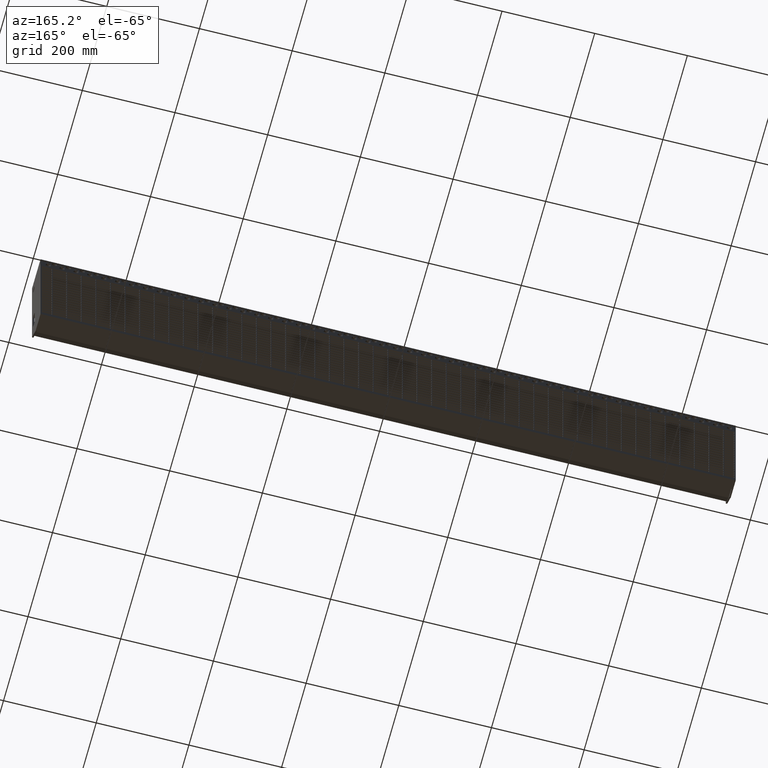
[diagram: clean part render]
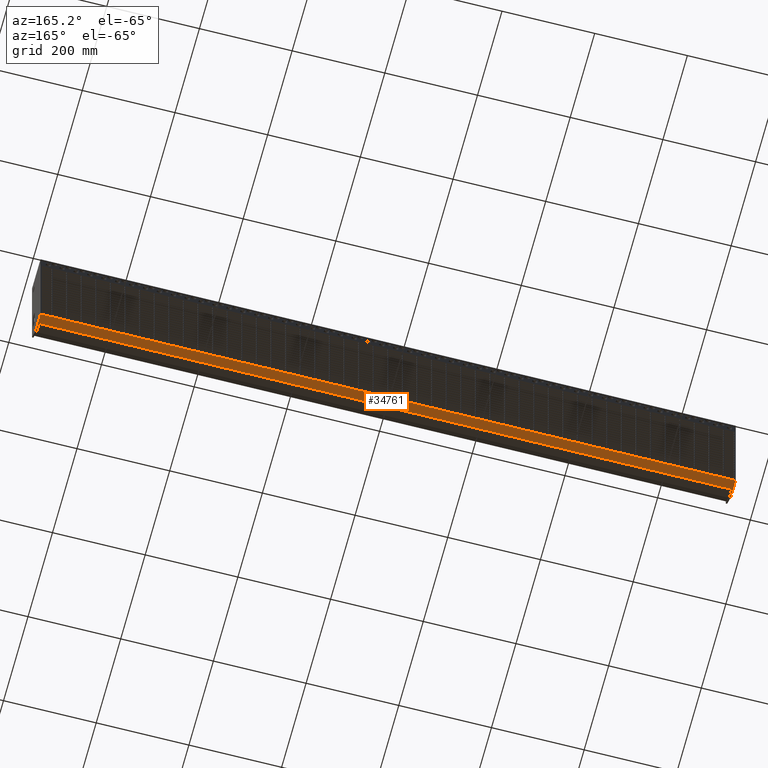
[diagram: same view with one face highlighted and labeled with its STEP entity id]
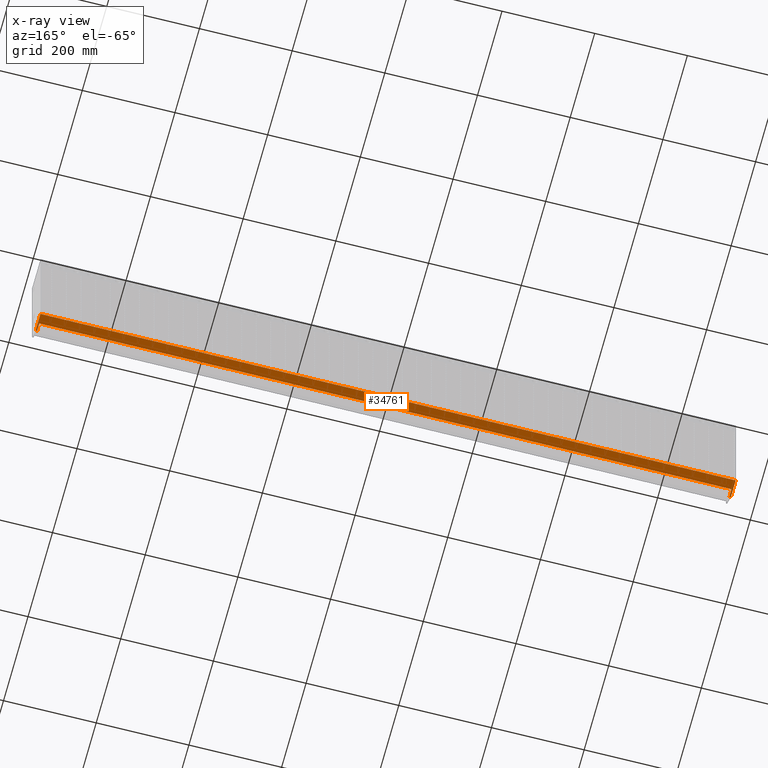
[diagram: x-ray of the same camera — body ghosted, the highlighted face saturated]
A machine part, auxiliary view. The second image highlights one B-rep face of the part: STEP entity #34761.
The next image is the same camera in x-ray: the body ghosted, the highlighted face saturated — about 0% of this face is hidden behind the body in this view.
In plain terms, the highlighted planar face has unit normal (0, 0, -1).
Its self-contained STEP definition (entity closure, byte-faithful):
#206 = CARTESIAN_POINT ( 'NONE',  ( 747.0000000000000000, 70.00000000000028400, -270.0000000000000000 ) ) ;
#452 = VERTEX_POINT ( 'NONE', #44100 ) ;
#1272 = VERTEX_POINT ( 'NONE', #19425 ) ;
#1625 = VECTOR ( 'NONE', #19365, 1000.000000000000000 ) ;
#3745 = DIRECTION ( 'NONE',  ( 0.0000000000000000000, 0.0000000000000000000, -1.000000000000000000 ) ) ;
#3756 = EDGE_CURVE ( 'NONE', #23351, #15274, #36457, .T. ) ;
#4330 = FACE_OUTER_BOUND ( 'NONE', #22886, .T. ) ;
#4502 = VECTOR ( 'NONE', #8114, 1000.000000000000000 ) ;
#4788 = CARTESIAN_POINT ( 'NONE',  ( -750.0000000000000000, 70.00000000000028400, -270.0000000000000000 ) ) ;
#5791 = LINE ( 'NONE', #14675, #15835 ) ;
#6456 = VECTOR ( 'NONE', #38842, 1000.000000000000000 ) ;
#6680 = DIRECTION ( 'NONE',  ( -1.000000000000000000, 0.0000000000000000000, -0.0000000000000000000 ) ) ;
#7399 = EDGE_CURVE ( 'NONE', #25303, #14770, #18689, .T. ) ;
#7818 = CARTESIAN_POINT ( 'NONE',  ( -750.0000000000000000, 70.00000000000028400, -270.0000000000000000 ) ) ;
#8114 = DIRECTION ( 'NONE',  ( 0.0000000000000000000, 1.000000000000000000, 0.0000000000000000000 ) ) ;
#9092 = CARTESIAN_POINT ( 'NONE',  ( 747.0000000000000000, 30.00000000000028100, -270.0000000000000000 ) ) ;
#9297 = VECTOR ( 'NONE', #12867, 1000.000000000000000 ) ;
#9438 = EDGE_CURVE ( 'NONE', #14770, #31572, #16385, .T. ) ;
#10538 = ORIENTED_EDGE ( 'NONE', *, *, #43142, .T. ) ;
#11086 = ORIENTED_EDGE ( 'NONE', *, *, #20130, .F. ) ;
#11845 = EDGE_CURVE ( 'NONE', #1272, #23351, #33719, .T. ) ;
#11864 = VERTEX_POINT ( 'NONE', #9092 ) ;
#12355 = EDGE_CURVE ( 'NONE', #11864, #15274, #16137, .T. ) ;
#12867 = DIRECTION ( 'NONE',  ( 1.000000000000000000, -0.0000000000000000000, -0.0000000000000000000 ) ) ;
#13712 = CARTESIAN_POINT ( 'NONE',  ( -750.0000000000000000, 30.00000000000028100, -270.0000000000000000 ) ) ;
#14675 = CARTESIAN_POINT ( 'NONE',  ( 750.0000000000000000, 70.00000000000028400, -270.0000000000000000 ) ) ;
#14770 = VERTEX_POINT ( 'NONE', #7818 ) ;
#15274 = VERTEX_POINT ( 'NONE', #43945 ) ;
#15835 = VECTOR ( 'NONE', #21916, 1000.000000000000000 ) ;
#15949 = CARTESIAN_POINT ( 'NONE',  ( 750.0000000000000000, 70.00000000000028400, -270.0000000000000000 ) ) ;
#16137 = LINE ( 'NONE', #33668, #25689 ) ;
#16385 = LINE ( 'NONE', #206, #26484 ) ;
#16458 = LINE ( 'NONE', #26194, #1625 ) ;
#18689 = LINE ( 'NONE', #4788, #6456 ) ;
#19365 = DIRECTION ( 'NONE',  ( 1.000000000000000000, 0.0000000000000000000, 0.0000000000000000000 ) ) ;
#19425 = CARTESIAN_POINT ( 'NONE',  ( -747.0000000000000000, 30.00000000000028100, -270.0000000000000000 ) ) ;
#20015 = DIRECTION ( 'NONE',  ( -1.000000000000000000, 0.0000000000000000000, 0.0000000000000000000 ) ) ;
#20130 = EDGE_CURVE ( 'NONE', #11864, #452, #16458, .T. ) ;
#20248 = DIRECTION ( 'NONE',  ( 1.000000000000000000, 0.0000000000000000000, 0.0000000000000000000 ) ) ;
#21916 = DIRECTION ( 'NONE',  ( -0.0000000000000000000, 1.000000000000000000, -0.0000000000000000000 ) ) ;
#22886 = EDGE_LOOP ( 'NONE', ( #42299, #11086, #42332, #43691, #24390, #10538, #35292, #29970 ) ) ;
#23351 = VERTEX_POINT ( 'NONE', #24611 ) ;
#24390 = ORIENTED_EDGE ( 'NONE', *, *, #11845, .F. ) ;
#24611 = CARTESIAN_POINT ( 'NONE',  ( -747.0000000000000000, 48.00000000000027700, -270.0000000000000000 ) ) ;
#25020 = EDGE_CURVE ( 'NONE', #452, #31572, #5791, .T. ) ;
#25303 = VERTEX_POINT ( 'NONE', #13712 ) ;
#25605 = CARTESIAN_POINT ( 'NONE',  ( -747.0000000000000000, 70.00000000000028400, -270.0000000000000000 ) ) ;
#25689 = VECTOR ( 'NONE', #33818, 1000.000000000000000 ) ;
#25898 = CARTESIAN_POINT ( 'NONE',  ( -823.1577310586392300, 48.00000000000027700, -270.0000000000000000 ) ) ;
#26194 = CARTESIAN_POINT ( 'NONE',  ( 747.0000000000000000, 30.00000000000028100, -270.0000000000000000 ) ) ;
#26484 = VECTOR ( 'NONE', #20248, 1000.000000000000000 ) ;
#29970 = ORIENTED_EDGE ( 'NONE', *, *, #9438, .T. ) ;
#30468 = AXIS2_PLACEMENT_3D ( 'NONE', #41032, #3745, #6680 ) ;
#31572 = VERTEX_POINT ( 'NONE', #15949 ) ;
#33668 = CARTESIAN_POINT ( 'NONE',  ( 747.0000000000000000, 70.00000000000028400, -270.0000000000000000 ) ) ;
#33719 = LINE ( 'NONE', #25605, #4502 ) ;
#33818 = DIRECTION ( 'NONE',  ( -0.0000000000000000000, 1.000000000000000000, -0.0000000000000000000 ) ) ;
#34043 = PLANE ( 'NONE',  #30468 ) ;
#34449 = VECTOR ( 'NONE', #20015, 1000.000000000000000 ) ;
#34761 = ADVANCED_FACE ( 'NONE', ( #4330 ), #34043, .T. ) ;
#35292 = ORIENTED_EDGE ( 'NONE', *, *, #7399, .T. ) ;
#36457 = LINE ( 'NONE', #25898, #9297 ) ;
#38842 = DIRECTION ( 'NONE',  ( 0.0000000000000000000, 1.000000000000000000, 0.0000000000000000000 ) ) ;
#41032 = CARTESIAN_POINT ( 'NONE',  ( 747.0000000000000000, 70.00000000000028400, -270.0000000000000000 ) ) ;
#42299 = ORIENTED_EDGE ( 'NONE', *, *, #25020, .F. ) ;
#42332 = ORIENTED_EDGE ( 'NONE', *, *, #12355, .T. ) ;
#43142 = EDGE_CURVE ( 'NONE', #1272, #25303, #43447, .T. ) ;
#43447 = LINE ( 'NONE', #43656, #34449 ) ;
#43656 = CARTESIAN_POINT ( 'NONE',  ( -747.0000000000000000, 30.00000000000028100, -270.0000000000000000 ) ) ;
#43691 = ORIENTED_EDGE ( 'NONE', *, *, #3756, .F. ) ;
#43945 = CARTESIAN_POINT ( 'NONE',  ( 747.0000000000000000, 48.00000000000027700, -270.0000000000000000 ) ) ;
#44100 = CARTESIAN_POINT ( 'NONE',  ( 750.0000000000000000, 30.00000000000028100, -270.0000000000000000 ) ) ;